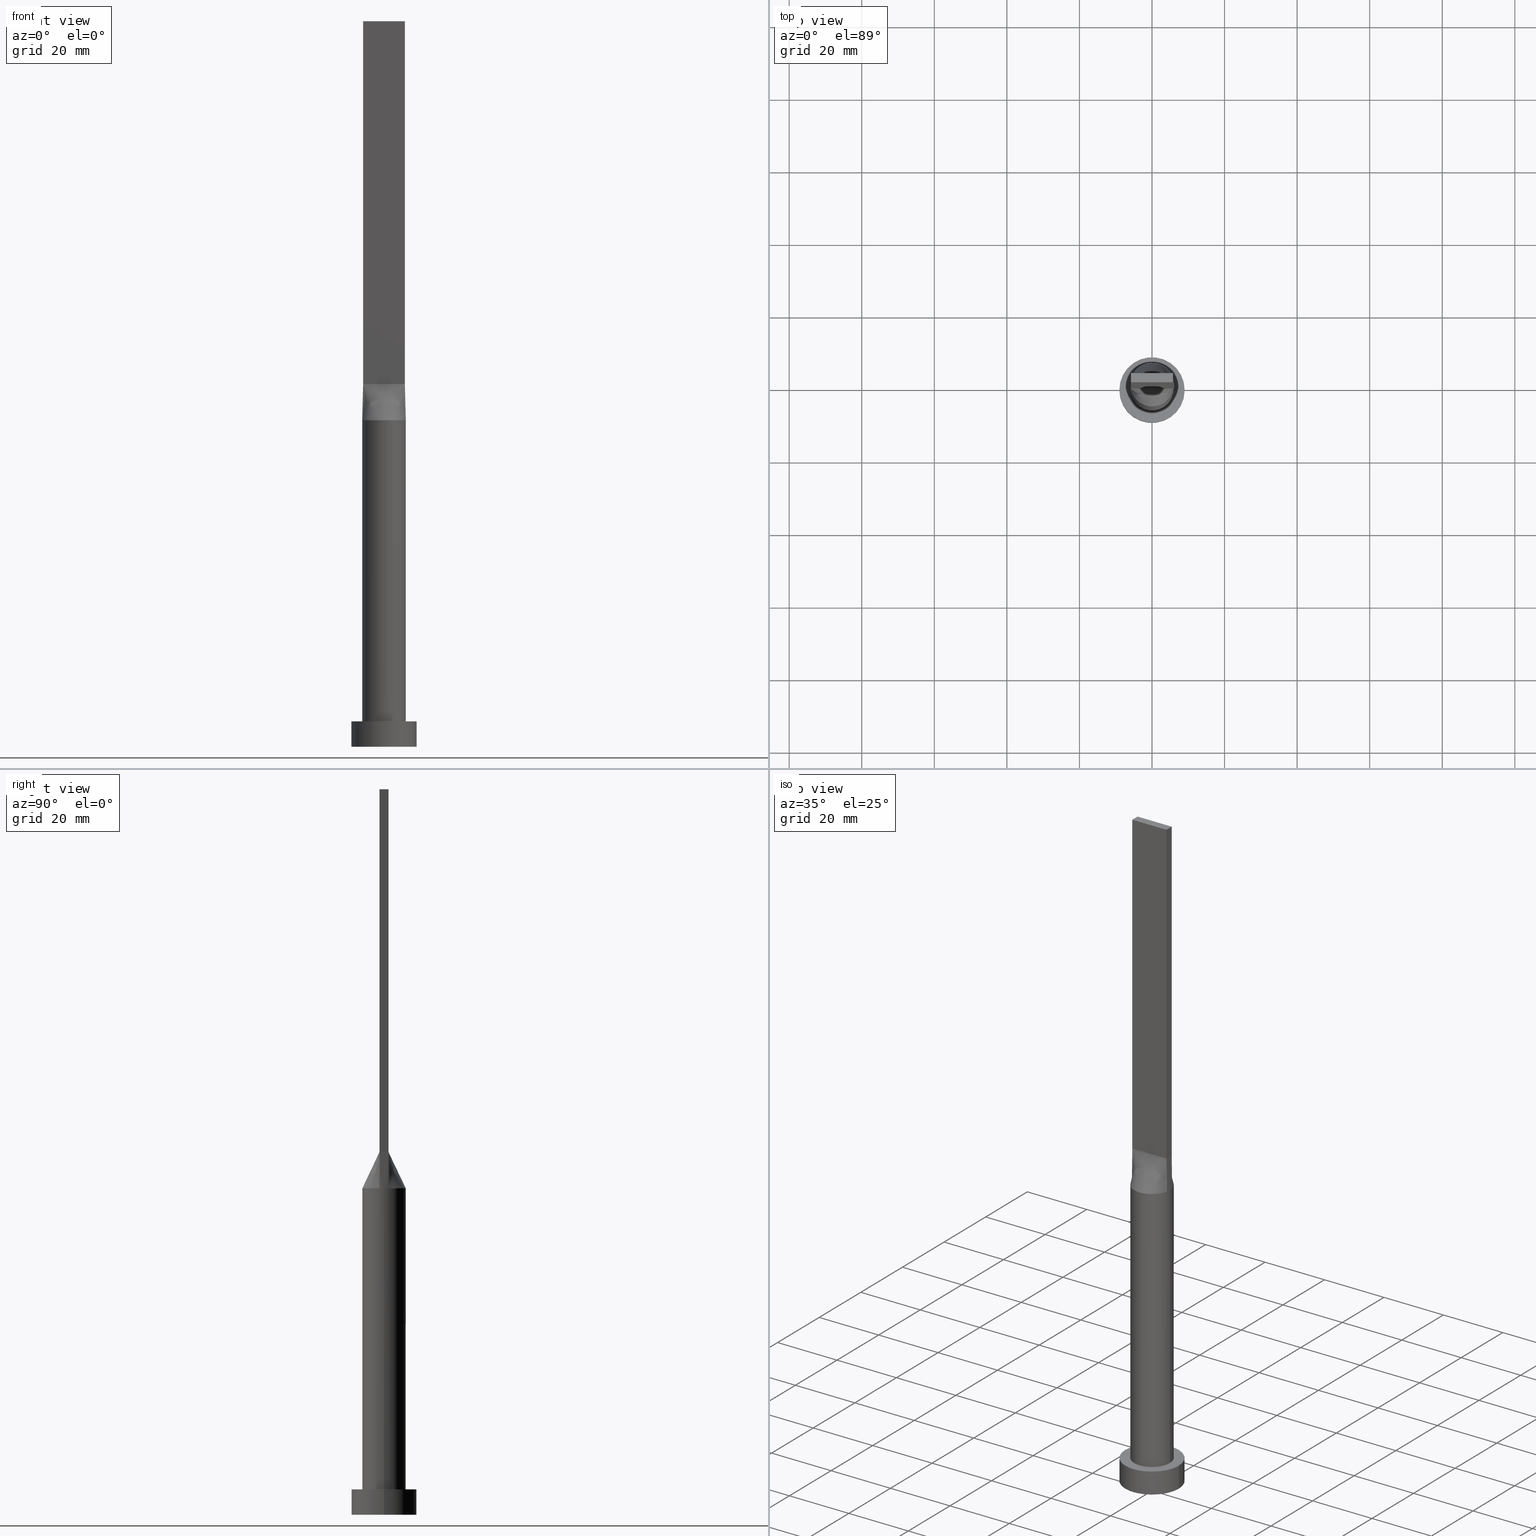
[diagram: canonical four-view strip — front | top / right | iso, engineering-drawing reading convention]
A machine part, canonical four-view strip (front | top / right | iso — engineering-drawing reading convention). The complete STEP part file that produces these views, byte-faithful:
ISO-10303-21;
HEADER;
FILE_DESCRIPTION (( 'STEP AP203' ),
    '1' );
FILE_NAME ('6422.STEP',
    '2023-02-13T08:50:45',
    ( '' ),
    ( '' ),
    'SwSTEP 2.0',
    'SolidWorks 2019',
    '' );
FILE_SCHEMA (( 'CONFIG_CONTROL_DESIGN' ));
ENDSEC;

DATA;
#1 = ADVANCED_FACE ( 'NONE', ( #494 ), #438, .T. ) ;
#2 = CARTESIAN_POINT ( 'NONE',  ( 9.000000000000000000, 1.102182119232617714E-15, 7.000000000000000000 ) ) ;
#3 = CARTESIAN_POINT ( 'NONE',  ( -5.759267569818394605, -1.752014689090954480, 90.00000000000004263 ) ) ;
#4 = CARTESIAN_POINT ( 'NONE',  ( 5.750000000000000000, -1.249999999999999778, 100.0000000000000000 ) ) ;
#5 = DATE_AND_TIME ( #231, #307 ) ;
#6 = DIRECTION ( 'NONE',  ( 1.000000000000000000, 0.000000000000000000, 0.000000000000000000 ) ) ;
#7 = EDGE_LOOP ( 'NONE', ( #520, #281, #196, #96 ) ) ;
#8 = MANIFOLD_SOLID_BREP ( 'P�idat vysunut�m5', #45 ) ;
#9 = PERSON_AND_ORGANIZATION_ROLE ( 'creator' ) ;
#10 = CARTESIAN_POINT ( 'NONE',  ( -0.9583333333333269310, -1.249999999999999334, 100.0000000000000000 ) ) ;
#11 = ORIENTED_EDGE ( 'NONE', *, *, #530, .F. ) ;
#12 = PERSON_AND_ORGANIZATION ( #330, #94 ) ;
#13 = DIRECTION ( 'NONE',  ( 0.000000000000000000, -1.000000000000000000, 0.000000000000000000 ) ) ;
#14 = ORIENTED_EDGE ( 'NONE', *, *, #509, .T. ) ;
#15 = CARTESIAN_POINT ( 'NONE',  ( 3.037647739454303331, -5.231880992812857123, 90.00000000000007105 ) ) ;
#16 = ORIENTED_EDGE ( 'NONE', *, *, #581, .T. ) ;
#17 = AXIS2_PLACEMENT_3D ( 'NONE', #291, #13, #245 ) ;
#18 = CC_DESIGN_APPROVAL ( #230, ( #25 ) ) ;
#19 = ADVANCED_FACE ( 'NONE', ( #120 ), #189, .T. ) ;
#20 = CARTESIAN_POINT ( 'NONE',  ( -0.4791666666666711816, 1.250000000000000222, 100.0000000000000000 ) ) ;
#21 = CARTESIAN_POINT ( 'NONE',  ( 3.037647739454305995, 5.231880992812856235, 90.00000000000002842 ) ) ;
#22 = LINE ( 'NONE', #573, #599 ) ;
#23 = CARTESIAN_POINT ( 'NONE',  ( 5.750000000000000000, 0.4166666666666655749, 100.0000000000000000 ) ) ;
#24 = CARTESIAN_POINT ( 'NONE',  ( 5.038190104264874236, 3.311355329404293002, 90.00000000000004263 ) ) ;
#25 = PRODUCT_DEFINITION ( 'NEZN�M�', '', #569, #448 ) ;
#26 = CARTESIAN_POINT ( 'NONE',  ( 5.038190104264874236, 3.311355329404293002, 90.00000000000004263 ) ) ;
#27 = VECTOR ( 'NONE', #119, 1000.000000000000000 ) ;
#28 = CARTESIAN_POINT ( 'NONE',  ( -5.270833333333333925, 1.250000000000000222, 100.0000000000000000 ) ) ;
#29 = DIRECTION ( 'NONE',  ( -1.000000000000000000, 0.000000000000000000, 0.000000000000000000 ) ) ;
#30 = CARTESIAN_POINT ( 'NONE',  ( -5.038190104264874236, 3.311355329404293446, 90.00000000000001421 ) ) ;
#31 = CARTESIAN_POINT ( 'NONE',  ( -6.000000000000000888, 0.000000000000000000, 7.000000000000000000 ) ) ;
#32 = ORIENTED_EDGE ( 'NONE', *, *, #185, .F. ) ;
#33 = DIRECTION ( 'NONE',  ( 1.000000000000000000, 0.000000000000000000, 0.000000000000000000 ) ) ;
#34 = CARTESIAN_POINT ( 'NONE',  ( -1.197916666666660079, -1.249999999999999334, 100.0000000000000000 ) ) ;
#35 = EDGE_CURVE ( 'NONE', #601, #399, #211, .T. ) ;
#36 = DIRECTION ( 'NONE',  ( 1.000000000000000000, 0.000000000000000000, -0.000000000000000000 ) ) ;
#37 = CARTESIAN_POINT ( 'NONE',  ( -0.4029827085191223790, 5.999999999999998224, 90.00000000000002842 ) ) ;
#38 = APPROVAL_PERSON_ORGANIZATION ( #50, #410, #331 ) ;
#39 = DIRECTION ( 'NONE',  ( 0.000000000000000000, 0.000000000000000000, 1.000000000000000000 ) ) ;
#40 = CARTESIAN_POINT ( 'NONE',  ( -3.660567483996338911, -4.804269179125217448, 90.00000000000002842 ) ) ;
#41 = DIRECTION ( 'NONE',  ( -1.000000000000000000, 5.656706986880892860E-17, 0.000000000000000000 ) ) ;
#42 = CARTESIAN_POINT ( 'NONE',  ( -5.759267569818392829, 1.752014689090956256, 90.00000000000002842 ) ) ;
#43 = VERTEX_POINT ( 'NONE', #543 ) ;
#44 = CARTESIAN_POINT ( 'NONE',  ( 5.806529091768402928, 1.262288932993131496, 95.00000000000000000 ) ) ;
#45 = CLOSED_SHELL ( 'NONE', ( #167, #1, #350, #285, #593, #146, #214, #19, #128, #334, #257, #54, #447, #268, #486 ) ) ;
#46 = CYLINDRICAL_SURFACE ( 'NONE', #121, 6.000000000000000888 ) ;
#47 = SHAPE_DEFINITION_REPRESENTATION ( #197, #154 ) ;
#48 = CARTESIAN_POINT ( 'NONE',  ( 5.750000000000000000, -1.249999999999999778, 200.0000000000000000 ) ) ;
#49 = ORIENTED_EDGE ( 'NONE', *, *, #343, .T. ) ;
#50 = PERSON_AND_ORGANIZATION ( #330, #94 ) ;
#51 = DIRECTION ( 'NONE',  ( 1.000000000000000000, 0.000000000000000000, 0.000000000000000000 ) ) ;
#52 = VERTEX_POINT ( 'NONE', #575 ) ;
#53 = SECURITY_CLASSIFICATION_LEVEL ( 'unclassified' ) ;
#54 = ADVANCED_FACE ( 'NONE', ( #258 ), #209, .F. ) ;
#55 = PLANE ( 'NONE',  #357 ) ;
#56 = VECTOR ( 'NONE', #359, 1000.000000000000000 ) ;
#57 = VERTEX_POINT ( 'NONE', #31 ) ;
#58 = APPROVAL_STATUS ( 'not_yet_approved' ) ;
#59 = LINE ( 'NONE', #519, #326 ) ;
#60 = ORIENTED_EDGE ( 'NONE', *, *, #367, .F. ) ;
#61 = APPROVAL_STATUS ( 'not_yet_approved' ) ;
#62 = CARTESIAN_POINT ( 'NONE',  ( 0.9583333333333390325, -1.249999999999999556, 100.0000000000000000 ) ) ;
#63 = VERTEX_POINT ( 'NONE', #352 ) ;
#64 = EDGE_CURVE ( 'NONE', #52, #527, #213, .T. ) ;
#65 = CARTESIAN_POINT ( 'NONE',  ( 5.750000000000000000, 1.250000000000000222, 100.0000000000000000 ) ) ;
#66 = VERTEX_POINT ( 'NONE', #118 ) ;
#67 = APPROVAL_PERSON_ORGANIZATION ( #425, #116, #92 ) ;
#68 = CARTESIAN_POINT ( 'NONE',  ( 0.9583333333333283743, 1.250000000000000222, 100.0000000000000000 ) ) ;
#69 = EDGE_LOOP ( 'NONE', ( #341, #153, #402, #14 ) ) ;
#70 = EDGE_CURVE ( 'NONE', #568, #57, #304, .T. ) ;
#71 = CARTESIAN_POINT ( 'NONE',  ( 4.791666666666664298, 1.250000000000000222, 100.0000000000000000 ) ) ;
#72 = CARTESIAN_POINT ( 'NONE',  ( 5.953310891118034576, -0.8594154111126169893, 90.00000000000001421 ) ) ;
#73 = CARTESIAN_POINT ( 'NONE',  ( 0.8058840496048939039, 5.959001506938069070, 90.00000000000002842 ) ) ;
#74 = B_SPLINE_SURFACE_WITH_KNOTS ( 'NONE', 3, 1, ( 
 ( #439, #65 ),
 ( #210, #482 ),
 ( #528, #71 ),
 ( #24, #248 ),
 ( #157, #169 ),
 ( #400, #492 ),
 ( #348, #212 ),
 ( #445, #207 ),
 ( #300, #68 ),
 ( #73, #256 ),
 ( #534, #254 ),
 ( #396, #435 ),
 ( #579, #20 ),
 ( #112, #161 ),
 ( #351, #205 ),
 ( #114, #356 ),
 ( #586, #76 ),
 ( #487, #398 ),
 ( #30, #392 ),
 ( #536, #252 ),
 ( #110, #28 ),
 ( #117, #303 ) ),
 .UNSPECIFIED., .F., .F., .F.,
 ( 4, 2, 2, 2, 2, 2, 2, 2, 2, 2, 4 ),
 ( 2, 2 ),
 ( 0.000000000000000000, 0.1249999999999999722, 0.2499999999999999445, 0.3749999999999999445, 0.4374999999999999445, 0.4999999999999998890, 0.5624999999999998890, 0.6249999999999998890, 0.7499999999999997780, 0.8749999999999998890, 1.000000000000000000 ),
 ( 0.000000000000000000, 1.000000000000000000 ),
 .UNSPECIFIED. ) ;
#75 = CARTESIAN_POINT ( 'NONE',  ( 5.750000000000000000, 0.8333333333333325932, 100.0000000000000000 ) ) ;
#76 = CARTESIAN_POINT ( 'NONE',  ( -2.395833333333335702, 1.250000000000000222, 100.0000000000000000 ) ) ;
#77 = CARTESIAN_POINT ( 'NONE',  ( 5.863058183536806744, 1.274577865986262326, 90.00000000000001421 ) ) ;
#78 = LINE ( 'NONE', #224, #327 ) ;
#79 = CARTESIAN_POINT ( 'NONE',  ( 5.586898165904734093, 2.266054396544147309, 90.00000000000002842 ) ) ;
#80 = EDGE_CURVE ( 'NONE', #136, #63, #165, .T. ) ;
#81 = PLANE ( 'NONE',  #259 ) ;
#82 = CARTESIAN_POINT ( 'NONE',  ( -5.953310891118033688, -0.8594154111126154350, 90.00000000000001421 ) ) ;
#83 = VECTOR ( 'NONE', #484, 1000.000000000000000 ) ;
#84 = LINE ( 'NONE', #89, #523 ) ;
#85 = CARTESIAN_POINT ( 'NONE',  ( 0.000000000000000000, 0.000000000000000000, 90.00000000000001421 ) ) ;
#86 = EDGE_CURVE ( 'NONE', #52, #63, #299, .T. ) ;
#87 = DIRECTION ( 'NONE',  ( -1.000000000000000000, 0.000000000000000000, 0.000000000000000000 ) ) ;
#88 = ORIENTED_EDGE ( 'NONE', *, *, #421, .F. ) ;
#89 = CARTESIAN_POINT ( 'NONE',  ( 5.750000000000000000, 1.250000000000000222, 100.0000000000000000 ) ) ;
#90 = DIRECTION ( 'NONE',  ( -0.000000000000000000, -0.000000000000000000, -1.000000000000000000 ) ) ;
#91 = ORIENTED_EDGE ( 'NONE', *, *, #378, .T. ) ;
#92 = APPROVAL_ROLE ( '' ) ;
#93 = CIRCLE ( 'NONE', #442, 6.000000000000000888 ) ;
#94 = ORGANIZATION ( 'NEUR�EN�', 'NEUR�EN�', '' ) ;
#95 = CARTESIAN_POINT ( 'NONE',  ( -1.966519853258819506, -5.681792876789066860, 90.00000000000004263 ) ) ;
#96 = ORIENTED_EDGE ( 'NONE', *, *, #160, .F. ) ;
#97 = CARTESIAN_POINT ( 'NONE',  ( 0.000000000000000000, 0.000000000000000000, 90.00000000000001421 ) ) ;
#98 = VERTEX_POINT ( 'NONE', #354 ) ;
#99 = B_SPLINE_SURFACE_WITH_KNOTS ( 'NONE', 3, 1, ( 
 ( #371, #229 ),
 ( #3, #220 ),
 ( #184, #407 ),
 ( #596, #363 ),
 ( #555, #131 ),
 ( #40, #365 ),
 ( #135, #324 ),
 ( #95, #34 ),
 ( #550, #10 ),
 ( #287, #380 ),
 ( #432, #512 ),
 ( #195, #232 ),
 ( #142, #342 ),
 ( #388, #62 ),
 ( #332, #383 ),
 ( #15, #377 ),
 ( #472, #234 ),
 ( #526, #199 ),
 ( #336, #567 ),
 ( #561, #328 ),
 ( #149, #570 ),
 ( #152, #4 ) ),
 .UNSPECIFIED., .F., .F., .F.,
 ( 4, 2, 2, 2, 2, 2, 2, 2, 2, 2, 4 ),
 ( 2, 2 ),
 ( 0.000000000000000000, 0.1250000000000000278, 0.2500000000000000555, 0.3750000000000001110, 0.4375000000000000555, 0.5000000000000000000, 0.5625000000000000000, 0.6250000000000000000, 0.7499999999999998890, 0.8750000000000000000, 1.000000000000000000 ),
 ( 0.000000000000000000, 1.000000000000000000 ),
 .UNSPECIFIED. ) ;
#100 = EDGE_CURVE ( 'NONE', #166, #66, #394, .T. ) ;
#101 = CARTESIAN_POINT ( 'NONE',  ( -9.000000000000000000, 0.000000000000000000, 0.000000000000000000 ) ) ;
#102 = EDGE_LOOP ( 'NONE', ( #145, #470, #577, #329 ) ) ;
#103 = APPLICATION_PROTOCOL_DEFINITION ( 'international standard', 'config_control_design', 1994, #451 ) ;
#104 = CARTESIAN_POINT ( 'NONE',  ( 5.750000000000000000, 1.250000000000000222, 100.0000000000000000 ) ) ;
#105 = VECTOR ( 'NONE', #576, 1000.000000000000000 ) ;
#106 = ORIENTED_EDGE ( 'NONE', *, *, #108, .T. ) ;
#107 = PLANE ( 'NONE',  #290 ) ;
#108 = EDGE_CURVE ( 'NONE', #43, #540, #168, .T. ) ;
#109 = ORIENTED_EDGE ( 'NONE', *, *, #70, .F. ) ;
#110 = CARTESIAN_POINT ( 'NONE',  ( -5.759267569818392829, 1.752014689090956256, 90.00000000000002842 ) ) ;
#111 = EDGE_LOOP ( 'NONE', ( #106, #143, #284, #460 ) ) ;
#112 = CARTESIAN_POINT ( 'NONE',  ( -1.587717880441007035, 5.799853445840308375, 90.00000000000001421 ) ) ;
#113 = CARTESIAN_POINT ( 'NONE',  ( 5.863058183536806744, -1.274577865986263436, 90.00000000000001421 ) ) ;
#114 = CARTESIAN_POINT ( 'NONE',  ( -3.037647739454304663, 5.231880992812857123, 90.00000000000007105 ) ) ;
#115 = CARTESIAN_POINT ( 'NONE',  ( -5.750000000000000000, 1.250000000000000222, 200.0000000000000000 ) ) ;
#116 = APPROVAL ( #556, 'NEUR�EN�' ) ;
#117 = CARTESIAN_POINT ( 'NONE',  ( -5.863058183536805856, 1.274577865986265435, 90.00000000000001421 ) ) ;
#118 = CARTESIAN_POINT ( 'NONE',  ( 9.000000000000000000, 1.102182119232617714E-15, 7.000000000000000000 ) ) ;
#119 = DIRECTION ( 'NONE',  ( -0.000000000000000000, -0.000000000000000000, -1.000000000000000000 ) ) ;
#120 = FACE_OUTER_BOUND ( 'NONE', #587, .T. ) ;
#121 = AXIS2_PLACEMENT_3D ( 'NONE', #85, #90, #270 ) ;
#122 = ORIENTED_EDGE ( 'NONE', *, *, #403, .T. ) ;
#123 = CARTESIAN_POINT ( 'NONE',  ( -5.750000000000000000, -1.249999999999999112, 200.0000000000000000 ) ) ;
#124 = DIRECTION ( 'NONE',  ( 0.000000000000000000, 0.000000000000000000, 1.000000000000000000 ) ) ;
#125 = DIRECTION ( 'NONE',  ( 1.000000000000000000, 0.000000000000000000, 0.000000000000000000 ) ) ;
#126 = DIRECTION ( 'NONE',  ( 0.000000000000000000, 0.000000000000000000, 1.000000000000000000 ) ) ;
#127 = CARTESIAN_POINT ( 'NONE',  ( -9.000000000000000000, 0.000000000000000000, 7.000000000000000000 ) ) ;
#128 = ADVANCED_FACE ( 'NONE', ( #315 ), #522, .T. ) ;
#129 = CIRCLE ( 'NONE', #474, 6.000000000000000888 ) ;
#130 = CARTESIAN_POINT ( 'NONE',  ( 5.750000000000000000, 1.250000000000000222, 200.0000000000000000 ) ) ;
#131 = CARTESIAN_POINT ( 'NONE',  ( -3.354166666666663410, -1.249999999999999112, 100.0000000000000000 ) ) ;
#132 = ORIENTED_EDGE ( 'NONE', *, *, #86, .F. ) ;
#133 = CARTESIAN_POINT ( 'NONE',  ( 5.750000000000000000, -1.249999999999999778, 200.0000000000000000 ) ) ;
#134 = LINE ( 'NONE', #409, #385 ) ;
#135 = CARTESIAN_POINT ( 'NONE',  ( -3.037647739454305551, -5.231880992812856235, 90.00000000000002842 ) ) ;
#136 = VERTEX_POINT ( 'NONE', #502 ) ;
#137 = APPROVAL_DATE_TIME ( #475, #230 ) ;
#138 = CARTESIAN_POINT ( 'NONE',  ( 5.750000000000000000, -1.249999999999999778, 100.0000000000000000 ) ) ;
#139 = CC_DESIGN_PERSON_AND_ORGANIZATION_ASSIGNMENT ( #236, #279, ( #463 ) ) ;
#140 = EDGE_LOOP ( 'NONE', ( #11, #325, #292, #109, #391, #272 ) ) ;
#141 = DATE_TIME_ROLE ( 'creation_date' ) ;
#142 = CARTESIAN_POINT ( 'NONE',  ( 0.8058840496048923496, -5.959001506938069070, 90.00000000000001421 ) ) ;
#143 = ORIENTED_EDGE ( 'NONE', *, *, #239, .T. ) ;
#144 = PLANE ( 'NONE',  #17 ) ;
#145 = ORIENTED_EDGE ( 'NONE', *, *, #35, .T. ) ;
#146 = ADVANCED_FACE ( 'NONE', ( #508 ), #547, .T. ) ;
#147 = CALENDAR_DATE ( 2023, 13, 2 ) ;
#148 = VECTOR ( 'NONE', #29, 1000.000000000000000 ) ;
#149 = CARTESIAN_POINT ( 'NONE',  ( 5.759267569818393717, -1.752014689090956256, 90.00000000000002842 ) ) ;
#150 = LOCAL_TIME ( 9, 50, 45.00000000000000000, #289 ) ;
#151 = ORIENTED_EDGE ( 'NONE', *, *, #297, .F. ) ;
#152 = CARTESIAN_POINT ( 'NONE',  ( 5.863058183536805856, -1.274577865986266101, 90.00000000000001421 ) ) ;
#153 = ORIENTED_EDGE ( 'NONE', *, *, #477, .F. ) ;
#154 = ADVANCED_BREP_SHAPE_REPRESENTATION ( '6422', ( #8, #339 ), #179 ) ;
#155 = DIRECTION ( 'NONE',  ( -0.000000000000000000, -0.000000000000000000, -1.000000000000000000 ) ) ;
#156 = CARTESIAN_POINT ( 'NONE',  ( -6.000000000000000888, 0.000000000000000000, 90.00000000000001421 ) ) ;
#157 = CARTESIAN_POINT ( 'NONE',  ( 4.659826596530313836, 3.842755878357678068, 90.00000000000002842 ) ) ;
#158 = CARTESIAN_POINT ( 'NONE',  ( -5.750000000000000000, 1.250000000000000222, 100.0000000000000000 ) ) ;
#159 = AXIS2_PLACEMENT_3D ( 'NONE', #172, #406, #551 ) ;
#160 = EDGE_CURVE ( 'NONE', #166, #308, #173, .T. ) ;
#161 = CARTESIAN_POINT ( 'NONE',  ( -0.9583333333333372561, 1.250000000000000222, 100.0000000000000000 ) ) ;
#162 = LOCAL_TIME ( 9, 50, 45.00000000000000000, #514 ) ;
#163 = CARTESIAN_POINT ( 'NONE',  ( 0.000000000000000000, 0.000000000000000000, 7.000000000000000000 ) ) ;
#164 = CARTESIAN_POINT ( 'NONE',  ( 0.000000000000000000, 0.000000000000000000, 7.000000000000000000 ) ) ;
#165 = LINE ( 'NONE', #158, #188 ) ;
#166 = VERTEX_POINT ( 'NONE', #361 ) ;
#167 = ADVANCED_FACE ( 'NONE', ( #545 ), #46, .T. ) ;
#168 = B_SPLINE_CURVE_WITH_KNOTS ( 'NONE', 3,
 ( #77, #255, #79, #26, #539, #263, #21, #537, #306, #206, #265, #37, #225, #453, #218, #369, #412, #312, #271, #459, #42, #174 ),
 .UNSPECIFIED., .F., .F.,
 ( 4, 2, 2, 2, 2, 2, 2, 2, 2, 2, 4 ),
 ( 0.000000000000000000, 0.1249999999999999722, 0.2499999999999999445, 0.3749999999999999445, 0.4374999999999999445, 0.4999999999999998890, 0.5624999999999998890, 0.6249999999999998890, 0.7499999999999997780, 0.8749999999999998890, 1.000000000000000000 ),
 .UNSPECIFIED. ) ;
#169 = CARTESIAN_POINT ( 'NONE',  ( 3.354166666666662966, 1.250000000000000222, 100.0000000000000000 ) ) ;
#170 = DIRECTION ( 'NONE',  ( -0.000000000000000000, -0.000000000000000000, -1.000000000000000000 ) ) ;
#171 = CIRCLE ( 'NONE', #501, 6.000000000000000888 ) ;
#172 = CARTESIAN_POINT ( 'NONE',  ( 0.000000000000000000, 0.000000000000000000, 90.00000000000001421 ) ) ;
#173 = LINE ( 'NONE', #127, #521 ) ;
#174 = CARTESIAN_POINT ( 'NONE',  ( -5.863058287509749888, 1.274577880478287017, 90.00000000000001421 ) ) ;
#175 = CC_DESIGN_DATE_AND_TIME_ASSIGNMENT ( #428, #282, ( #463 ) ) ;
#176 = DIRECTION ( 'NONE',  ( 1.000000000000000000, -9.769962616701377556E-15, 0.000000000000000000 ) ) ;
#177 = CARTESIAN_POINT ( 'NONE',  ( -6.000000000000000888, -0.4297636735037110300, 89.99999999999997158 ) ) ;
#178 = AXIS2_PLACEMENT_3D ( 'NONE', #163, #170, #490 ) ;
#179 =( GEOMETRIC_REPRESENTATION_CONTEXT ( 3 ) GLOBAL_UNCERTAINTY_ASSIGNED_CONTEXT ( ( #533 ) ) GLOBAL_UNIT_ASSIGNED_CONTEXT ( ( #415, #362, #323 ) ) REPRESENTATION_CONTEXT ( 'NONE', 'WORKASPACE' ) );
#180 = DIRECTION ( 'NONE',  ( -0.000000000000000000, -0.000000000000000000, -1.000000000000000000 ) ) ;
#181 = CARTESIAN_POINT ( 'NONE',  ( -6.000000000000000888, 0.4297636735037124733, 90.00000000000000000 ) ) ;
#182 = APPLICATION_CONTEXT ( 'configuration controlled 3d designs of mechanical parts and assemblies' ) ;
#183 = DIRECTION ( 'NONE',  ( 5.656706986880892860E-17, 1.000000000000000000, -0.000000000000000000 ) ) ;
#184 = CARTESIAN_POINT ( 'NONE',  ( -5.586898165904734093, -2.266054396544145533, 90.00000000000002842 ) ) ;
#185 = EDGE_CURVE ( 'NONE', #98, #226, #134, .T. ) ;
#186 = CARTESIAN_POINT ( 'NONE',  ( 6.000000000000000888, 7.347880794884120722E-16, 7.000000000000000000 ) ) ;
#187 = ORIENTED_EDGE ( 'NONE', *, *, #581, .F. ) ;
#188 = VECTOR ( 'NONE', #488, 1000.000000000000000 ) ;
#189 = B_SPLINE_SURFACE_WITH_KNOTS ( 'NONE', 3, 1, ( 
 ( #113, #441 ),
 ( #72, #261 ),
 ( #310, #349 ),
 ( #216, #23 ),
 ( #358, #75 ),
 ( #496, #580 ) ),
 .UNSPECIFIED., .F., .F., .F.,
 ( 4, 2, 4 ),
 ( 2, 2 ),
 ( 0.000000000000000000, 0.5000000000000000000, 1.000000000000000000 ),
 ( 0.000000000000000000, 1.000000000000000000 ),
 .UNSPECIFIED. ) ;
#190 = VECTOR ( 'NONE', #346, 1000.000000000000000 ) ;
#191 = CIRCLE ( 'NONE', #532, 6.000000000000000888 ) ;
#192 = DIRECTION ( 'NONE',  ( 0.000000000000000000, 1.000000000000000000, 0.000000000000000000 ) ) ;
#193 = ORIENTED_EDGE ( 'NONE', *, *, #70, .T. ) ;
#194 = CARTESIAN_POINT ( 'NONE',  ( 0.000000000000000000, 0.000000000000000000, 0.000000000000000000 ) ) ;
#195 = CARTESIAN_POINT ( 'NONE',  ( 0.4029827085191214908, -6.000000000000000888, 90.00000000000002842 ) ) ;
#196 = ORIENTED_EDGE ( 'NONE', *, *, #297, .T. ) ;
#197 = PRODUCT_DEFINITION_SHAPE ( 'NONE', 'NONE',  #25 ) ;
#198 = PERSON_AND_ORGANIZATION_ROLE ( 'design_owner' ) ;
#199 = CARTESIAN_POINT ( 'NONE',  ( 3.354166666666669183, -1.249999999999999778, 100.0000000000000284 ) ) ;
#200 = ORIENTED_EDGE ( 'NONE', *, *, #403, .F. ) ;
#201 = CIRCLE ( 'NONE', #541, 9.000000000000000000 ) ;
#202 = CARTESIAN_POINT ( 'NONE',  ( 5.750000000000000000, -1.249999999999999778, 200.0000000000000000 ) ) ;
#203 = VECTOR ( 'NONE', #180, 1000.000000000000000 ) ;
#204 = ORIENTED_EDGE ( 'NONE', *, *, #239, .F. ) ;
#205 = CARTESIAN_POINT ( 'NONE',  ( -1.197916666666670515, 1.250000000000000222, 100.0000000000000000 ) ) ;
#206 = CARTESIAN_POINT ( 'NONE',  ( 0.8058840496048939039, 5.959001506938069070, 90.00000000000002842 ) ) ;
#207 = CARTESIAN_POINT ( 'NONE',  ( 1.197916666666661856, 1.250000000000000222, 100.0000000000000000 ) ) ;
#208 = EDGE_CURVE ( 'NONE', #308, #513, #201, .T. ) ;
#209 = PLANE ( 'NONE',  #266 ) ;
#210 = CARTESIAN_POINT ( 'NONE',  ( 5.759267569818392829, 1.752014689090955590, 90.00000000000002842 ) ) ;
#211 = LINE ( 'NONE', #535, #148 ) ;
#212 = CARTESIAN_POINT ( 'NONE',  ( 1.916666666666662078, 1.250000000000000222, 100.0000000000000000 ) ) ;
#213 = LINE ( 'NONE', #393, #500 ) ;
#214 = ADVANCED_FACE ( 'NONE', ( #506 ), #99, .T. ) ;
#215 = FACE_OUTER_BOUND ( 'NONE', #111, .T. ) ;
#216 = CARTESIAN_POINT ( 'NONE',  ( 6.000000000000000888, 0.4297636735037115296, 89.99999999999997158 ) ) ;
#217 = FACE_OUTER_BOUND ( 'NONE', #235, .T. ) ;
#218 = CARTESIAN_POINT ( 'NONE',  ( -1.966519853258818173, 5.681792876789067748, 90.00000000000001421 ) ) ;
#219 = CARTESIAN_POINT ( 'NONE',  ( 0.000000000000000000, 0.000000000000000000, 0.000000000000000000 ) ) ;
#220 = CARTESIAN_POINT ( 'NONE',  ( -5.270833333333333037, -1.249999999999999112, 100.0000000000000142 ) ) ;
#221 = FACE_OUTER_BOUND ( 'NONE', #483, .T. ) ;
#222 = EDGE_CURVE ( 'NONE', #540, #568, #589, .T. ) ;
#223 = DIRECTION ( 'NONE',  ( -0.000000000000000000, -0.000000000000000000, -1.000000000000000000 ) ) ;
#224 = CARTESIAN_POINT ( 'NONE',  ( -5.806529091768402928, -1.262288932993130386, 95.00000000000000000 ) ) ;
#225 = CARTESIAN_POINT ( 'NONE',  ( -0.8058840496048931268, 5.959001506938069070, 90.00000000000001421 ) ) ;
#226 = VERTEX_POINT ( 'NONE', #138 ) ;
#227 = LOCAL_TIME ( 9, 50, 45.00000000000000000, #560 ) ;
#228 = DIRECTION ( 'NONE',  ( 1.000000000000000000, 0.000000000000000000, -0.000000000000000000 ) ) ;
#229 = CARTESIAN_POINT ( 'NONE',  ( -5.750000000000000000, -1.249999999999999112, 100.0000000000000000 ) ) ;
#230 = APPROVAL ( #58, 'NEUR�EN�' ) ;
#231 = CALENDAR_DATE ( 2023, 13, 2 ) ;
#232 = CARTESIAN_POINT ( 'NONE',  ( 0.2395833333333390325, -1.249999999999999556, 100.0000000000000142 ) ) ;
#233 = DATE_AND_TIME ( #511, #227 ) ;
#234 = CARTESIAN_POINT ( 'NONE',  ( 2.395833333333337478, -1.249999999999999778, 100.0000000000000142 ) ) ;
#235 = EDGE_LOOP ( 'NONE', ( #122, #473, #333, #344 ) ) ;
#236 = PERSON_AND_ORGANIZATION ( #330, #94 ) ;
#237 = AXIS2_PLACEMENT_3D ( 'NONE', #368, #455, #36 ) ;
#238 = CARTESIAN_POINT ( 'NONE',  ( -5.750000000000000000, 1.250000000000000222, 200.0000000000000000 ) ) ;
#239 = EDGE_CURVE ( 'NONE', #540, #136, #59, .T. ) ;
#240 = VERTEX_POINT ( 'NONE', #104 ) ;
#241 = PERSON_AND_ORGANIZATION ( #330, #94 ) ;
#242 = DIRECTION ( 'NONE',  ( 0.000000000000000000, 0.000000000000000000, 1.000000000000000000 ) ) ;
#243 = ORIENTED_EDGE ( 'NONE', *, *, #563, .F. ) ;
#244 = DATE_AND_TIME ( #382, #162 ) ;
#245 = DIRECTION ( 'NONE',  ( 0.000000000000000000, -0.000000000000000000, -1.000000000000000000 ) ) ;
#246 = ORIENTED_EDGE ( 'NONE', *, *, #80, .F. ) ;
#247 = AXIS2_PLACEMENT_3D ( 'NONE', #529, #485, #301 ) ;
#248 = CARTESIAN_POINT ( 'NONE',  ( 3.833333333333329929, 1.250000000000000222, 100.0000000000000000 ) ) ;
#249 = AXIS2_PLACEMENT_3D ( 'NONE', #295, #489, #583 ) ;
#250 = ORIENTED_EDGE ( 'NONE', *, *, #275, .F. ) ;
#251 = CC_DESIGN_PERSON_AND_ORGANIZATION_ASSIGNMENT ( #241, #9, ( #569 ) ) ;
#252 = CARTESIAN_POINT ( 'NONE',  ( -4.791666666666666963, 1.250000000000000222, 100.0000000000000000 ) ) ;
#253 = VERTEX_POINT ( 'NONE', #186 ) ;
#254 = CARTESIAN_POINT ( 'NONE',  ( 0.2395833333333281245, 1.250000000000000222, 100.0000000000000000 ) ) ;
#255 = CARTESIAN_POINT ( 'NONE',  ( 5.759267569818392829, 1.752014689090955590, 90.00000000000002842 ) ) ;
#256 = CARTESIAN_POINT ( 'NONE',  ( 0.4791666666666616337, 1.250000000000000222, 100.0000000000000000 ) ) ;
#257 = ADVANCED_FACE ( 'NONE', ( #564 ), #144, .F. ) ;
#258 = FACE_OUTER_BOUND ( 'NONE', #446, .T. ) ;
#259 = AXIS2_PLACEMENT_3D ( 'NONE', #219, #408, #228 ) ;
#260 = CARTESIAN_POINT ( 'NONE',  ( -5.750000000000000000, 1.250000000000000222, 100.0000000000000000 ) ) ;
#261 = CARTESIAN_POINT ( 'NONE',  ( 5.750000000000000000, -0.8333333333333339255, 100.0000000000000000 ) ) ;
#262 = DIRECTION ( 'NONE',  ( 1.000000000000000000, 0.000000000000000000, 0.000000000000000000 ) ) ;
#263 = CARTESIAN_POINT ( 'NONE',  ( 3.660567483996337579, 4.804269179125218336, 90.00000000000002842 ) ) ;
#264 = CARTESIAN_POINT ( 'NONE',  ( 0.000000000000000000, 0.000000000000000000, 90.00000000000001421 ) ) ;
#265 = CARTESIAN_POINT ( 'NONE',  ( 0.4029827085191226566, 5.999999999999999112, 90.00000000000002842 ) ) ;
#266 = AXIS2_PLACEMENT_3D ( 'NONE', #115, #397, #444 ) ;
#267 = CIRCLE ( 'NONE', #159, 6.000000000000000888 ) ;
#268 = ADVANCED_FACE ( 'NONE', ( #476 ), #55, .F. ) ;
#269 = CARTESIAN_POINT ( 'NONE',  ( -6.000000000000000888, -3.688698462745542764E-16, 90.00000000000000000 ) ) ;
#270 = DIRECTION ( 'NONE',  ( -1.000000000000000000, 0.000000000000000000, 0.000000000000000000 ) ) ;
#271 = CARTESIAN_POINT ( 'NONE',  ( -5.038190104264874236, 3.311355329404293446, 90.00000000000001421 ) ) ;
#272 = ORIENTED_EDGE ( 'NONE', *, *, #108, .F. ) ;
#273 = LINE ( 'NONE', #44, #395 ) ;
#274 = CARTESIAN_POINT ( 'NONE',  ( -5.750000000000000000, -0.8333333333333313719, 100.0000000000000000 ) ) ;
#275 = EDGE_CURVE ( 'NONE', #516, #98, #93, .T. ) ;
#276 = ORIENTED_EDGE ( 'NONE', *, *, #440, .F. ) ;
#277 = AXIS2_PLACEMENT_3D ( 'NONE', #97, #340, #51 ) ;
#278 = LOCAL_TIME ( 9, 50, 45.00000000000000000, #464 ) ;
#279 = PERSON_AND_ORGANIZATION_ROLE ( 'classification_officer' ) ;
#280 = DIRECTION ( 'NONE',  ( 0.000000000000000000, 0.000000000000000000, 1.000000000000000000 ) ) ;
#281 = ORIENTED_EDGE ( 'NONE', *, *, #548, .T. ) ;
#282 = DATE_TIME_ROLE ( 'classification_date' ) ;
#283 = DIRECTION ( 'NONE',  ( 0.000000000000000000, 0.000000000000000000, 1.000000000000000000 ) ) ;
#284 = ORIENTED_EDGE ( 'NONE', *, *, #378, .F. ) ;
#285 = ADVANCED_FACE ( 'NONE', ( #422, #515 ), #107, .T. ) ;
#286 = DIRECTION ( 'NONE',  ( 0.000000000000000000, 0.000000000000000000, 1.000000000000000000 ) ) ;
#287 = CARTESIAN_POINT ( 'NONE',  ( -0.8058840496048947921, -5.959001506938068182, 90.00000000000005684 ) ) ;
#288 = ORIENTED_EDGE ( 'NONE', *, *, #467, .T. ) ;
#289 = COORDINATED_UNIVERSAL_TIME_OFFSET ( 1, 0, .AHEAD. ) ;
#290 = AXIS2_PLACEMENT_3D ( 'NONE', #465, #283, #426 ) ;
#291 = CARTESIAN_POINT ( 'NONE',  ( 5.750000000000000000, 1.250000000000000222, 200.0000000000000000 ) ) ;
#292 = ORIENTED_EDGE ( 'NONE', *, *, #440, .T. ) ;
#293 = LINE ( 'NONE', #238, #105 ) ;
#294 = EDGE_LOOP ( 'NONE', ( #91, #389, #417, #565 ) ) ;
#295 = CARTESIAN_POINT ( 'NONE',  ( 0.000000000000000000, 0.000000000000000000, 7.000000000000000000 ) ) ;
#296 = ORIENTED_EDGE ( 'NONE', *, *, #574, .T. ) ;
#297 = EDGE_CURVE ( 'NONE', #513, #308, #347, .T. ) ;
#298 = FACE_OUTER_BOUND ( 'NONE', #585, .T. ) ;
#299 = LINE ( 'NONE', #123, #578 ) ;
#300 = CARTESIAN_POINT ( 'NONE',  ( 1.587717880441007479, 5.799853445840305710, 90.00000000000000000 ) ) ;
#301 = DIRECTION ( 'NONE',  ( 1.000000000000000000, 0.000000000000000000, 0.000000000000000000 ) ) ;
#302 = CC_DESIGN_DATE_AND_TIME_ASSIGNMENT ( #233, #141, ( #25 ) ) ;
#303 = CARTESIAN_POINT ( 'NONE',  ( -5.750000000000000000, 1.250000000000000222, 100.0000000000000000 ) ) ;
#304 = LINE ( 'NONE', #156, #190 ) ;
#305 = CARTESIAN_POINT ( 'NONE',  ( 6.000000000000000888, 6.923844231069229210E-17, 90.00000000000000000 ) ) ;
#306 = CARTESIAN_POINT ( 'NONE',  ( 1.587717880441007479, 5.799853445840305710, 90.00000000000000000 ) ) ;
#307 = LOCAL_TIME ( 9, 50, 45.00000000000000000, #471 ) ;
#308 = VERTEX_POINT ( 'NONE', #101 ) ;
#309 = DIRECTION ( 'NONE',  ( 1.000000000000000000, 0.000000000000000000, 0.000000000000000000 ) ) ;
#310 = CARTESIAN_POINT ( 'NONE',  ( 6.000000000000000888, -0.4297636735037126954, 90.00000000000000000 ) ) ;
#311 = LINE ( 'NONE', #133, #366 ) ;
#312 = CARTESIAN_POINT ( 'NONE',  ( -4.659826596530312948, 3.842755878357679844, 90.00000000000001421 ) ) ;
#313 = EDGE_CURVE ( 'NONE', #527, #601, #469, .T. ) ;
#314 = DIRECTION ( 'NONE',  ( -0.000000000000000000, 1.000000000000000000, -0.000000000000000000 ) ) ;
#315 = FACE_OUTER_BOUND ( 'NONE', #319, .T. ) ;
#316 = AXIS2_PLACEMENT_3D ( 'NONE', #546, #39, #309 ) ;
#317 = CARTESIAN_POINT ( 'NONE',  ( -5.750000000000000000, -1.249999999999999112, 100.0000000000000000 ) ) ;
#318 = CARTESIAN_POINT ( 'NONE',  ( -5.750000000000000000, 0.8333333333333350357, 100.0000000000000000 ) ) ;
#319 = EDGE_LOOP ( 'NONE', ( #558, #375, #433, #246, #204 ) ) ;
#320 = LINE ( 'NONE', #2, #56 ) ;
#321 = EDGE_CURVE ( 'NONE', #399, #52, #293, .T. ) ;
#322 = DIRECTION ( 'NONE',  ( 0.000000000000000000, 0.000000000000000000, 1.000000000000000000 ) ) ;
#323 =( NAMED_UNIT ( * ) SI_UNIT ( $, .STERADIAN. ) SOLID_ANGLE_UNIT ( ) );
#324 = CARTESIAN_POINT ( 'NONE',  ( -1.916666666666660523, -1.249999999999999334, 100.0000000000000000 ) ) ;
#325 = ORIENTED_EDGE ( 'NONE', *, *, #367, .T. ) ;
#326 = VECTOR ( 'NONE', #524, 1000.000000000000114 ) ;
#327 = VECTOR ( 'NONE', #411, 1000.000000000000114 ) ;
#328 = CARTESIAN_POINT ( 'NONE',  ( 4.791666666666667851, -1.249999999999999778, 100.0000000000000000 ) ) ;
#329 = ORIENTED_EDGE ( 'NONE', *, *, #313, .T. ) ;
#330 = PERSON ( 'NEUR�EN�', 'NEUR�EN�', 'NEUR�EN�', ('NEUR�EN�'), ('NEUR�EN�'), ('NEUR�EN�') ) ;
#331 = APPROVAL_ROLE ( '' ) ;
#332 = CARTESIAN_POINT ( 'NONE',  ( 1.966519853258817729, -5.681792876789067748, 90.00000000000001421 ) ) ;
#333 = ORIENTED_EDGE ( 'NONE', *, *, #64, .F. ) ;
#334 = ADVANCED_FACE ( 'NONE', ( #215 ), #74, .T. ) ;
#335 = MECHANICAL_CONTEXT ( 'NONE', #182, 'mechanical' ) ;
#336 = CARTESIAN_POINT ( 'NONE',  ( 5.038190104264874236, -3.311355329404293890, 90.00000000000002842 ) ) ;
#337 = ORIENTED_EDGE ( 'NONE', *, *, #100, .T. ) ;
#338 = PERSON_AND_ORGANIZATION_ROLE ( 'design_supplier' ) ;
#339 = AXIS2_PLACEMENT_3D ( 'NONE', #194, #286, #418 ) ;
#340 = DIRECTION ( 'NONE',  ( 0.000000000000000000, 0.000000000000000000, 1.000000000000000000 ) ) ;
#341 = ORIENTED_EDGE ( 'NONE', *, *, #563, .T. ) ;
#342 = CARTESIAN_POINT ( 'NONE',  ( 0.4791666666666724028, -1.249999999999999556, 100.0000000000000142 ) ) ;
#343 = EDGE_CURVE ( 'NONE', #66, #166, #454, .T. ) ;
#344 = ORIENTED_EDGE ( 'NONE', *, *, #86, .T. ) ;
#345 = DIRECTION ( 'NONE',  ( -0.000000000000000000, -0.000000000000000000, -1.000000000000000000 ) ) ;
#346 = DIRECTION ( 'NONE',  ( -0.000000000000000000, -0.000000000000000000, -1.000000000000000000 ) ) ;
#347 = CIRCLE ( 'NONE', #510, 9.000000000000000000 ) ;
#348 = CARTESIAN_POINT ( 'NONE',  ( 3.037647739454305995, 5.231880992812856235, 90.00000000000002842 ) ) ;
#349 = CARTESIAN_POINT ( 'NONE',  ( 5.750000000000000000, -0.4166666666666677954, 100.0000000000000000 ) ) ;
#350 = ADVANCED_FACE ( 'NONE', ( #298 ), #443, .T. ) ;
#351 = CARTESIAN_POINT ( 'NONE',  ( -1.966519853258818173, 5.681792876789067748, 90.00000000000001421 ) ) ;
#352 = CARTESIAN_POINT ( 'NONE',  ( -5.750000000000000000, -1.249999999999999112, 100.0000000000000000 ) ) ;
#353 = LINE ( 'NONE', #538, #27 ) ;
#354 = CARTESIAN_POINT ( 'NONE',  ( 5.863058287509796074, -1.274577880478293901, 90.00000000000001421 ) ) ;
#355 = ORIENTED_EDGE ( 'NONE', *, *, #548, .F. ) ;
#356 = CARTESIAN_POINT ( 'NONE',  ( -1.916666666666669849, 1.250000000000000222, 100.0000000000000000 ) ) ;
#357 = AXIS2_PLACEMENT_3D ( 'NONE', #202, #480, #242 ) ;
#358 = CARTESIAN_POINT ( 'NONE',  ( 5.953310891118033688, 0.8594154111126159901, 90.00000000000001421 ) ) ;
#359 = DIRECTION ( 'NONE',  ( -0.000000000000000000, -0.000000000000000000, -1.000000000000000000 ) ) ;
#360 = CC_DESIGN_PERSON_AND_ORGANIZATION_ASSIGNMENT ( #518, #198, ( #582 ) ) ;
#361 = CARTESIAN_POINT ( 'NONE',  ( -9.000000000000000000, 0.000000000000000000, 7.000000000000000000 ) ) ;
#362 =( NAMED_UNIT ( * ) PLANE_ANGLE_UNIT ( ) SI_UNIT ( $, .RADIAN. ) );
#363 = CARTESIAN_POINT ( 'NONE',  ( -3.833333333333330817, -1.249999999999999112, 100.0000000000000142 ) ) ;
#364 = DIRECTION ( 'NONE',  ( -0.01130506171853812650, -0.002457622112725661723, 0.9999330755971076456 ) ) ;
#365 = CARTESIAN_POINT ( 'NONE',  ( -2.395833333333328152, -1.249999999999999112, 100.0000000000000000 ) ) ;
#366 = VECTOR ( 'NONE', #503, 1000.000000000000000 ) ;
#367 = EDGE_CURVE ( 'NONE', #372, #253, #353, .T. ) ;
#368 = CARTESIAN_POINT ( 'NONE',  ( 0.000000000000000000, 0.000000000000000000, 200.0000000000000000 ) ) ;
#369 = CARTESIAN_POINT ( 'NONE',  ( -3.037647739454304663, 5.231880992812857123, 90.00000000000007105 ) ) ;
#370 = CALENDAR_DATE ( 2023, 13, 2 ) ;
#371 = CARTESIAN_POINT ( 'NONE',  ( -5.863058183536806744, -1.274577865986261438, 90.00000000000001421 ) ) ;
#372 = VERTEX_POINT ( 'NONE', #305 ) ;
#373 = APPLICATION_PROTOCOL_DEFINITION ( 'international standard', 'config_control_design', 1994, #182 ) ;
#374 = CARTESIAN_POINT ( 'NONE',  ( 0.000000000000000000, 0.000000000000000000, 90.00000000000001421 ) ) ;
#375 = ORIENTED_EDGE ( 'NONE', *, *, #421, .T. ) ;
#376 = CC_DESIGN_SECURITY_CLASSIFICATION ( #463, ( #569 ) ) ;
#377 = CARTESIAN_POINT ( 'NONE',  ( 1.916666666666671626, -1.249999999999999778, 100.0000000000000142 ) ) ;
#378 = EDGE_CURVE ( 'NONE', #240, #136, #390, .T. ) ;
#379 = ORIENTED_EDGE ( 'NONE', *, *, #530, .T. ) ;
#380 = CARTESIAN_POINT ( 'NONE',  ( -0.4791666666666606345, -1.249999999999999334, 100.0000000000000000 ) ) ;
#381 = ORIENTED_EDGE ( 'NONE', *, *, #493, .T. ) ;
#382 = CALENDAR_DATE ( 2023, 13, 2 ) ;
#383 = CARTESIAN_POINT ( 'NONE',  ( 1.197916666666672292, -1.249999999999999778, 100.0000000000000142 ) ) ;
#384 = ORIENTED_EDGE ( 'NONE', *, *, #100, .F. ) ;
#385 = VECTOR ( 'NONE', #457, 1000.000000000000114 ) ;
#386 = EDGE_CURVE ( 'NONE', #399, #136, #22, .T. ) ;
#387 = CC_DESIGN_APPROVAL ( #116, ( #569 ) ) ;
#388 = CARTESIAN_POINT ( 'NONE',  ( 1.587717880441006368, -5.799853445840308375, 90.00000000000001421 ) ) ;
#389 = ORIENTED_EDGE ( 'NONE', *, *, #386, .F. ) ;
#390 = LINE ( 'NONE', #260, #83 ) ;
#391 = ORIENTED_EDGE ( 'NONE', *, *, #222, .F. ) ;
#392 = CARTESIAN_POINT ( 'NONE',  ( -3.833333333333334370, 1.250000000000000222, 100.0000000000000000 ) ) ;
#393 = CARTESIAN_POINT ( 'NONE',  ( -5.750000000000000000, -1.249999999999999112, 200.0000000000000000 ) ) ;
#394 = CIRCLE ( 'NONE', #247, 9.000000000000000000 ) ;
#395 = VECTOR ( 'NONE', #364, 1000.000000000000114 ) ;
#396 = CARTESIAN_POINT ( 'NONE',  ( -0.4029827085191223790, 5.999999999999998224, 90.00000000000002842 ) ) ;
#397 = DIRECTION ( 'NONE',  ( 1.000000000000000000, 0.000000000000000000, -0.000000000000000000 ) ) ;
#398 = CARTESIAN_POINT ( 'NONE',  ( -3.354166666666667851, 1.250000000000000222, 100.0000000000000000 ) ) ;
#399 = VERTEX_POINT ( 'NONE', #549 ) ;
#400 = CARTESIAN_POINT ( 'NONE',  ( 3.660567483996337579, 4.804269179125218336, 90.00000000000002842 ) ) ;
#401 = DIRECTION ( 'NONE',  ( -0.000000000000000000, -0.000000000000000000, -1.000000000000000000 ) ) ;
#402 = ORIENTED_EDGE ( 'NONE', *, *, #313, .F. ) ;
#403 = EDGE_CURVE ( 'NONE', #63, #226, #452, .T. ) ;
#404 = CARTESIAN_POINT ( 'NONE',  ( 9.000000000000000000, 1.102182119232617714E-15, 0.000000000000000000 ) ) ;
#405 = CARTESIAN_POINT ( 'NONE',  ( -5.953310891118034576, 0.8594154111126165452, 90.00000000000001421 ) ) ;
#406 = DIRECTION ( 'NONE',  ( 0.000000000000000000, 0.000000000000000000, 1.000000000000000000 ) ) ;
#407 = CARTESIAN_POINT ( 'NONE',  ( -4.791666666666666075, -1.249999999999999112, 100.0000000000000142 ) ) ;
#408 = DIRECTION ( 'NONE',  ( 0.000000000000000000, 0.000000000000000000, 1.000000000000000000 ) ) ;
#409 = CARTESIAN_POINT ( 'NONE',  ( 5.806529091768402928, -1.262288932993132828, 95.00000000000000000 ) ) ;
#410 = APPROVAL ( #61, 'NEUR�EN�' ) ;
#411 = DIRECTION ( 'NONE',  ( -0.01130506171853812650, -0.002457622112725682973, -0.9999330755971076456 ) ) ;
#412 = CARTESIAN_POINT ( 'NONE',  ( -3.660567483996338023, 4.804269179125219225, 90.00000000000005684 ) ) ;
#413 = ORIENTED_EDGE ( 'NONE', *, *, #386, .T. ) ;
#414 = APPROVAL_PERSON_ORGANIZATION ( #12, #230, #553 ) ;
#415 =( LENGTH_UNIT ( ) NAMED_UNIT ( * ) SI_UNIT ( .MILLI., .METRE. ) );
#416 = CARTESIAN_POINT ( 'NONE',  ( -5.750000000000000000, 0.4166666666666691832, 100.0000000000000000 ) ) ;
#417 = ORIENTED_EDGE ( 'NONE', *, *, #35, .F. ) ;
#418 = DIRECTION ( 'NONE',  ( 1.000000000000000000, 0.000000000000000000, 0.000000000000000000 ) ) ;
#419 = CARTESIAN_POINT ( 'NONE',  ( 0.000000000000000000, 0.000000000000000000, 0.000000000000000000 ) ) ;
#420 = ORIENTED_EDGE ( 'NONE', *, *, #80, .T. ) ;
#421 = EDGE_CURVE ( 'NONE', #568, #516, #171, .T. ) ;
#422 = FACE_BOUND ( 'NONE', #562, .T. ) ;
#423 = ORIENTED_EDGE ( 'NONE', *, *, #321, .F. ) ;
#424 = CIRCLE ( 'NONE', #316, 6.000000000000000888 ) ;
#425 = PERSON_AND_ORGANIZATION ( #330, #94 ) ;
#426 = DIRECTION ( 'NONE',  ( 1.000000000000000000, 0.000000000000000000, -0.000000000000000000 ) ) ;
#427 = ORIENTED_EDGE ( 'NONE', *, *, #185, .T. ) ;
#428 = DATE_AND_TIME ( #147, #278 ) ;
#429 = DIRECTION ( 'NONE',  ( 1.000000000000000000, 0.000000000000000000, 0.000000000000000000 ) ) ;
#430 = ORIENTED_EDGE ( 'NONE', *, *, #275, .T. ) ;
#431 = APPROVAL_DATE_TIME ( #244, #410 ) ;
#432 = CARTESIAN_POINT ( 'NONE',  ( -0.4029827085191233227, -6.000000000000000000, 90.00000000000004263 ) ) ;
#433 = ORIENTED_EDGE ( 'NONE', *, *, #467, .F. ) ;
#434 = VECTOR ( 'NONE', #192, 1000.000000000000000 ) ;
#435 = CARTESIAN_POINT ( 'NONE',  ( -0.2395833333333383663, 1.250000000000000222, 100.0000000000000000 ) ) ;
#436 = ORIENTED_EDGE ( 'NONE', *, *, #160, .T. ) ;
#437 = DIRECTION ( 'NONE',  ( -1.000000000000000000, 0.000000000000000000, 0.000000000000000000 ) ) ;
#438 = CYLINDRICAL_SURFACE ( 'NONE', #178, 9.000000000000000000 ) ;
#439 = CARTESIAN_POINT ( 'NONE',  ( 5.863058183536806744, 1.274577865986262104, 90.00000000000001421 ) ) ;
#440 = EDGE_CURVE ( 'NONE', #253, #57, #424, .T. ) ;
#441 = CARTESIAN_POINT ( 'NONE',  ( 5.750000000000000000, -1.249999999999999778, 100.0000000000000000 ) ) ;
#442 = AXIS2_PLACEMENT_3D ( 'NONE', #374, #280, #429 ) ;
#443 = CYLINDRICAL_SURFACE ( 'NONE', #559, 9.000000000000000000 ) ;
#444 = DIRECTION ( 'NONE',  ( -0.000000000000000000, 0.000000000000000000, -1.000000000000000000 ) ) ;
#445 = CARTESIAN_POINT ( 'NONE',  ( 1.966519853258819062, 5.681792876789066860, 90.00000000000002842 ) ) ;
#446 = EDGE_LOOP ( 'NONE', ( #420, #132, #423, #413 ) ) ;
#447 = ADVANCED_FACE ( 'NONE', ( #217 ), #497, .F. ) ;
#448 = DESIGN_CONTEXT ( 'detailed design', #451, 'design' ) ;
#449 = CARTESIAN_POINT ( 'NONE',  ( 0.000000000000000000, 0.000000000000000000, 7.000000000000000000 ) ) ;
#450 = CARTESIAN_POINT ( 'NONE',  ( -5.863058183536806744, 1.274577865986262770, 90.00000000000001421 ) ) ;
#451 = APPLICATION_CONTEXT ( 'configuration controlled 3d designs of mechanical parts and assemblies' ) ;
#452 = LINE ( 'NONE', #317, #531 ) ;
#453 = CARTESIAN_POINT ( 'NONE',  ( -1.587717880441007035, 5.799853445840308375, 90.00000000000001421 ) ) ;
#454 = CIRCLE ( 'NONE', #249, 9.000000000000000000 ) ;
#455 = DIRECTION ( 'NONE',  ( 0.000000000000000000, 0.000000000000000000, 1.000000000000000000 ) ) ;
#456 = CC_DESIGN_PERSON_AND_ORGANIZATION_ASSIGNMENT ( #566, #507, ( #25 ) ) ;
#457 = DIRECTION ( 'NONE',  ( -0.01130506171853803803, 0.002457622112726073286, 0.9999330755971076456 ) ) ;
#458 = DIRECTION ( 'NONE',  ( 1.000000000000000000, -5.656706986880892860E-17, 0.000000000000000000 ) ) ;
#459 = CARTESIAN_POINT ( 'NONE',  ( -5.586898165904732316, 2.266054396544148197, 90.00000000000002842 ) ) ;
#460 = ORIENTED_EDGE ( 'NONE', *, *, #574, .F. ) ;
#461 = DIRECTION ( 'NONE',  ( 0.000000000000000000, 0.000000000000000000, 1.000000000000000000 ) ) ;
#462 = DIRECTION ( 'NONE',  ( -0.000000000000000000, -0.000000000000000000, -1.000000000000000000 ) ) ;
#463 = SECURITY_CLASSIFICATION ( '', '', #53 ) ;
#464 = COORDINATED_UNIVERSAL_TIME_OFFSET ( 1, 0, .AHEAD. ) ;
#465 = CARTESIAN_POINT ( 'NONE',  ( 0.000000000000000000, 0.000000000000000000, 7.000000000000000000 ) ) ;
#466 = ORIENTED_EDGE ( 'NONE', *, *, #208, .T. ) ;
#467 = EDGE_CURVE ( 'NONE', #63, #516, #78, .T. ) ;
#468 = APPROVAL_DATE_TIME ( #5, #116 ) ;
#469 = LINE ( 'NONE', #48, #434 ) ;
#470 = ORIENTED_EDGE ( 'NONE', *, *, #321, .T. ) ;
#471 = COORDINATED_UNIVERSAL_TIME_OFFSET ( 1, 0, .AHEAD. ) ;
#472 = CARTESIAN_POINT ( 'NONE',  ( 3.660567483996338023, -4.804269179125219225, 90.00000000000005684 ) ) ;
#473 = ORIENTED_EDGE ( 'NONE', *, *, #509, .F. ) ;
#474 = AXIS2_PLACEMENT_3D ( 'NONE', #264, #126, #176 ) ;
#475 = DATE_AND_TIME ( #370, #150 ) ;
#476 = FACE_OUTER_BOUND ( 'NONE', #69, .T. ) ;
#477 = EDGE_CURVE ( 'NONE', #601, #240, #597, .T. ) ;
#478 = EDGE_LOOP ( 'NONE', ( #60, #187, #250, #88, #193, #381 ) ) ;
#479 = PERSON_AND_ORGANIZATION ( #330, #94 ) ;
#480 = DIRECTION ( 'NONE',  ( -1.000000000000000000, 0.000000000000000000, 0.000000000000000000 ) ) ;
#481 = ORIENTED_EDGE ( 'NONE', *, *, #493, .F. ) ;
#482 = CARTESIAN_POINT ( 'NONE',  ( 5.270833333333332149, 1.250000000000000222, 100.0000000000000000 ) ) ;
#483 = EDGE_LOOP ( 'NONE', ( #572, #151 ) ) ;
#484 = DIRECTION ( 'NONE',  ( -1.000000000000000000, -0.000000000000000000, -0.000000000000000000 ) ) ;
#485 = DIRECTION ( 'NONE',  ( 0.000000000000000000, 0.000000000000000000, 1.000000000000000000 ) ) ;
#486 = ADVANCED_FACE ( 'NONE', ( #505 ), #595, .T. ) ;
#487 = CARTESIAN_POINT ( 'NONE',  ( -4.659826596530312948, 3.842755878357679844, 90.00000000000001421 ) ) ;
#488 = DIRECTION ( 'NONE',  ( 0.000000000000000000, -1.000000000000000000, 0.000000000000000000 ) ) ;
#489 = DIRECTION ( 'NONE',  ( 0.000000000000000000, 0.000000000000000000, 1.000000000000000000 ) ) ;
#490 = DIRECTION ( 'NONE',  ( -1.000000000000000000, 0.000000000000000000, 0.000000000000000000 ) ) ;
#491 = AXIS2_PLACEMENT_3D ( 'NONE', #495, #183, #41 ) ;
#492 = CARTESIAN_POINT ( 'NONE',  ( 2.395833333333328596, 1.250000000000000222, 100.0000000000000000 ) ) ;
#493 = EDGE_CURVE ( 'NONE', #57, #253, #191, .T. ) ;
#494 = FACE_OUTER_BOUND ( 'NONE', #7, .T. ) ;
#495 = CARTESIAN_POINT ( 'NONE',  ( -5.750000000000000000, -1.249999999999999112, 200.0000000000000000 ) ) ;
#496 = CARTESIAN_POINT ( 'NONE',  ( 5.863058183536806744, 1.274577865986262326, 90.00000000000001421 ) ) ;
#497 = PLANE ( 'NONE',  #491 ) ;
#498 = CARTESIAN_POINT ( 'NONE',  ( -5.750000000000000000, -0.4166666666666639651, 100.0000000000000000 ) ) ;
#499 = CARTESIAN_POINT ( 'NONE',  ( 5.750000000000000000, -1.249999999999999778, 200.0000000000000000 ) ) ;
#500 = VECTOR ( 'NONE', #584, 1000.000000000000000 ) ;
#501 = AXIS2_PLACEMENT_3D ( 'NONE', #542, #461, #33 ) ;
#502 = CARTESIAN_POINT ( 'NONE',  ( -5.750000000000000000, 1.250000000000000222, 100.0000000000000000 ) ) ;
#503 = DIRECTION ( 'NONE',  ( -0.000000000000000000, -0.000000000000000000, -1.000000000000000000 ) ) ;
#504 = CARTESIAN_POINT ( 'NONE',  ( 0.000000000000000000, 0.000000000000000000, 90.00000000000001421 ) ) ;
#505 = FACE_OUTER_BOUND ( 'NONE', #102, .T. ) ;
#506 = FACE_OUTER_BOUND ( 'NONE', #588, .T. ) ;
#507 = PERSON_AND_ORGANIZATION_ROLE ( 'creator' ) ;
#508 = FACE_OUTER_BOUND ( 'NONE', #478, .T. ) ;
#509 = EDGE_CURVE ( 'NONE', #527, #226, #311, .T. ) ;
#510 = AXIS2_PLACEMENT_3D ( 'NONE', #419, #557, #6 ) ;
#511 = CALENDAR_DATE ( 2023, 13, 2 ) ;
#512 = CARTESIAN_POINT ( 'NONE',  ( -0.2395833333333274584, -1.249999999999999556, 100.0000000000000142 ) ) ;
#513 = VERTEX_POINT ( 'NONE', #404 ) ;
#514 = COORDINATED_UNIVERSAL_TIME_OFFSET ( 1, 0, .AHEAD. ) ;
#515 = FACE_OUTER_BOUND ( 'NONE', #525, .T. ) ;
#516 = VERTEX_POINT ( 'NONE', #590 ) ;
#517 = CC_DESIGN_PERSON_AND_ORGANIZATION_ASSIGNMENT ( #479, #338, ( #569 ) ) ;
#518 = PERSON_AND_ORGANIZATION ( #330, #94 ) ;
#519 = CARTESIAN_POINT ( 'NONE',  ( -5.806529091768402928, 1.262288932993132606, 95.00000000000000000 ) ) ;
#520 = ORIENTED_EDGE ( 'NONE', *, *, #343, .F. ) ;
#521 = VECTOR ( 'NONE', #223, 1000.000000000000000 ) ;
#522 = B_SPLINE_SURFACE_WITH_KNOTS ( 'NONE', 3, 1, ( 
 ( #450, #600 ),
 ( #405, #318 ),
 ( #181, #416 ),
 ( #177, #498 ),
 ( #82, #274 ),
 ( #591, #594 ) ),
 .UNSPECIFIED., .F., .F., .F.,
 ( 4, 2, 4 ),
 ( 2, 2 ),
 ( 0.000000000000000000, 0.5000000000000000000, 1.000000000000000000 ),
 ( 0.000000000000000000, 1.000000000000000000 ),
 .UNSPECIFIED. ) ;
#523 = VECTOR ( 'NONE', #314, 1000.000000000000000 ) ;
#524 = DIRECTION ( 'NONE',  ( 0.01130506171853803803, -0.002457622112725964866, 0.9999330755971076456 ) ) ;
#525 = EDGE_LOOP ( 'NONE', ( #337, #49 ) ) ;
#526 = CARTESIAN_POINT ( 'NONE',  ( 4.659826596530312948, -3.842755878357678512, 90.00000000000001421 ) ) ;
#527 = VERTEX_POINT ( 'NONE', #499 ) ;
#528 = CARTESIAN_POINT ( 'NONE',  ( 5.586898165904734093, 2.266054396544147309, 90.00000000000002842 ) ) ;
#529 = CARTESIAN_POINT ( 'NONE',  ( 0.000000000000000000, 0.000000000000000000, 7.000000000000000000 ) ) ;
#530 = EDGE_CURVE ( 'NONE', #372, #43, #267, .T. ) ;
#531 = VECTOR ( 'NONE', #458, 1000.000000000000000 ) ;
#532 = AXIS2_PLACEMENT_3D ( 'NONE', #449, #124, #262 ) ;
#533 = UNCERTAINTY_MEASURE_WITH_UNIT (LENGTH_MEASURE( 1.000000000000000082E-05 ), #415, 'distance_accuracy_value', 'NONE');
#534 = CARTESIAN_POINT ( 'NONE',  ( 0.4029827085191226566, 5.999999999999999112, 90.00000000000002842 ) ) ;
#535 = CARTESIAN_POINT ( 'NONE',  ( 5.750000000000000000, 1.250000000000000222, 200.0000000000000000 ) ) ;
#536 = CARTESIAN_POINT ( 'NONE',  ( -5.586898165904732316, 2.266054396544148197, 90.00000000000002842 ) ) ;
#537 = CARTESIAN_POINT ( 'NONE',  ( 1.966519853258819062, 5.681792876789066860, 90.00000000000002842 ) ) ;
#538 = CARTESIAN_POINT ( 'NONE',  ( 6.000000000000000888, 7.347880794884120722E-16, 90.00000000000001421 ) ) ;
#539 = CARTESIAN_POINT ( 'NONE',  ( 4.659826596530313836, 3.842755878357678068, 90.00000000000002842 ) ) ;
#540 = VERTEX_POINT ( 'NONE', #592 ) ;
#541 = AXIS2_PLACEMENT_3D ( 'NONE', #552, #322, #125 ) ;
#542 = CARTESIAN_POINT ( 'NONE',  ( 0.000000000000000000, 0.000000000000000000, 90.00000000000001421 ) ) ;
#543 = CARTESIAN_POINT ( 'NONE',  ( 5.863058183536806744, 1.274577865986262326, 90.00000000000001421 ) ) ;
#544 = CARTESIAN_POINT ( 'NONE',  ( 5.750000000000000000, 1.250000000000000222, 200.0000000000000000 ) ) ;
#545 = FACE_OUTER_BOUND ( 'NONE', #140, .T. ) ;
#546 = CARTESIAN_POINT ( 'NONE',  ( 0.000000000000000000, 0.000000000000000000, 7.000000000000000000 ) ) ;
#547 = CYLINDRICAL_SURFACE ( 'NONE', #598, 6.000000000000000888 ) ;
#548 = EDGE_CURVE ( 'NONE', #66, #513, #320, .T. ) ;
#549 = CARTESIAN_POINT ( 'NONE',  ( -5.750000000000000000, 1.250000000000000222, 200.0000000000000000 ) ) ;
#550 = CARTESIAN_POINT ( 'NONE',  ( -1.587717880441008589, -5.799853445840304822, 90.00000000000001421 ) ) ;
#551 = DIRECTION ( 'NONE',  ( 1.000000000000000000, 0.000000000000000000, 0.000000000000000000 ) ) ;
#552 = CARTESIAN_POINT ( 'NONE',  ( 0.000000000000000000, 0.000000000000000000, 0.000000000000000000 ) ) ;
#553 = APPROVAL_ROLE ( '' ) ;
#554 = PRODUCT_RELATED_PRODUCT_CATEGORY ( 'detail', '', ( #582 ) ) ;
#555 = CARTESIAN_POINT ( 'NONE',  ( -4.659826596530313836, -3.842755878357677179, 90.00000000000002842 ) ) ;
#556 = APPROVAL_STATUS ( 'not_yet_approved' ) ;
#557 = DIRECTION ( 'NONE',  ( 0.000000000000000000, 0.000000000000000000, 1.000000000000000000 ) ) ;
#558 = ORIENTED_EDGE ( 'NONE', *, *, #222, .T. ) ;
#559 = AXIS2_PLACEMENT_3D ( 'NONE', #164, #345, #437 ) ;
#560 = COORDINATED_UNIVERSAL_TIME_OFFSET ( 1, 0, .AHEAD. ) ;
#561 = CARTESIAN_POINT ( 'NONE',  ( 5.586898165904734093, -2.266054396544146865, 90.00000000000004263 ) ) ;
#562 = EDGE_LOOP ( 'NONE', ( #481, #276 ) ) ;
#563 = EDGE_CURVE ( 'NONE', #226, #240, #84, .T. ) ;
#564 = FACE_OUTER_BOUND ( 'NONE', #294, .T. ) ;
#565 = ORIENTED_EDGE ( 'NONE', *, *, #477, .T. ) ;
#566 = PERSON_AND_ORGANIZATION ( #330, #94 ) ;
#567 = CARTESIAN_POINT ( 'NONE',  ( 3.833333333333336146, -1.249999999999999778, 100.0000000000000284 ) ) ;
#568 = VERTEX_POINT ( 'NONE', #269 ) ;
#569 = PRODUCT_DEFINITION_FORMATION_WITH_SPECIFIED_SOURCE ( 'LIBOVOLN�', '', #582, .NOT_KNOWN. ) ;
#570 = CARTESIAN_POINT ( 'NONE',  ( 5.270833333333333925, -1.249999999999999778, 100.0000000000000000 ) ) ;
#571 = CC_DESIGN_APPROVAL ( #410, ( #463 ) ) ;
#572 = ORIENTED_EDGE ( 'NONE', *, *, #208, .F. ) ;
#573 = CARTESIAN_POINT ( 'NONE',  ( -5.750000000000000000, 1.250000000000000222, 200.0000000000000000 ) ) ;
#574 = EDGE_CURVE ( 'NONE', #43, #240, #273, .T. ) ;
#575 = CARTESIAN_POINT ( 'NONE',  ( -5.750000000000000000, -1.249999999999999112, 200.0000000000000000 ) ) ;
#576 = DIRECTION ( 'NONE',  ( 0.000000000000000000, -1.000000000000000000, 0.000000000000000000 ) ) ;
#577 = ORIENTED_EDGE ( 'NONE', *, *, #64, .T. ) ;
#578 = VECTOR ( 'NONE', #401, 1000.000000000000000 ) ;
#579 = CARTESIAN_POINT ( 'NONE',  ( -0.8058840496048931268, 5.959001506938069070, 90.00000000000001421 ) ) ;
#580 = CARTESIAN_POINT ( 'NONE',  ( 5.750000000000000000, 1.250000000000000222, 100.0000000000000000 ) ) ;
#581 = EDGE_CURVE ( 'NONE', #98, #372, #129, .T. ) ;
#582 = PRODUCT ( '6422', '6422', '', ( #335 ) ) ;
#583 = DIRECTION ( 'NONE',  ( 1.000000000000000000, 0.000000000000000000, 0.000000000000000000 ) ) ;
#584 = DIRECTION ( 'NONE',  ( 1.000000000000000000, -5.656706986880892860E-17, 0.000000000000000000 ) ) ;
#585 = EDGE_LOOP ( 'NONE', ( #355, #384, #436, #466 ) ) ;
#586 = CARTESIAN_POINT ( 'NONE',  ( -3.660567483996338023, 4.804269179125219225, 90.00000000000005684 ) ) ;
#587 = EDGE_LOOP ( 'NONE', ( #16, #379, #296, #243, #32 ) ) ;
#588 = EDGE_LOOP ( 'NONE', ( #430, #427, #200, #288 ) ) ;
#589 = CIRCLE ( 'NONE', #277, 6.000000000000000888 ) ;
#590 = CARTESIAN_POINT ( 'NONE',  ( -5.863065408737084816, -1.274579424051652365, 90.00000000000001421 ) ) ;
#591 = CARTESIAN_POINT ( 'NONE',  ( -5.863058183536806744, -1.274577865986261660, 90.00000000000001421 ) ) ;
#592 = CARTESIAN_POINT ( 'NONE',  ( -5.863058287509749888, 1.274577880478287017, 90.00000000000001421 ) ) ;
#593 = ADVANCED_FACE ( 'NONE', ( #221 ), #81, .F. ) ;
#594 = CARTESIAN_POINT ( 'NONE',  ( -5.750000000000000000, -1.249999999999999334, 100.0000000000000000 ) ) ;
#595 = PLANE ( 'NONE',  #237 ) ;
#596 = CARTESIAN_POINT ( 'NONE',  ( -5.038190104264876013, -3.311355329404291670, 90.00000000000005684 ) ) ;
#597 = LINE ( 'NONE', #544, #203 ) ;
#598 = AXIS2_PLACEMENT_3D ( 'NONE', #504, #462, #87 ) ;
#599 = VECTOR ( 'NONE', #155, 1000.000000000000000 ) ;
#600 = CARTESIAN_POINT ( 'NONE',  ( -5.750000000000000000, 1.250000000000000222, 100.0000000000000000 ) ) ;
#601 = VERTEX_POINT ( 'NONE', #130 ) ;
ENDSEC;
END-ISO-10303-21;
